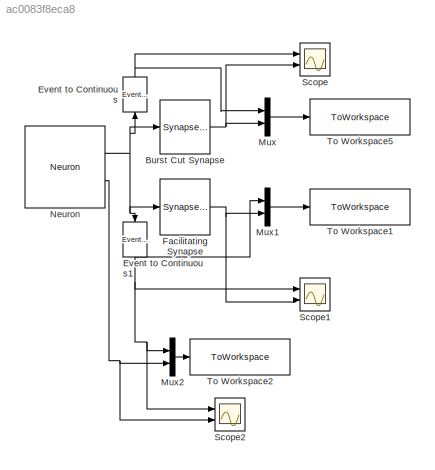
MODEL slx_ac0083f8eca8
KIND model
CONFIG AbsTol = auto
CONFIG EnableMultiTasking = off
CONFIG FixedStep = auto
CONFIG MaxStep = auto
CONFIG MinStep = auto
CONFIG RelTol = 1e-3
CONFIG SampleTimeConstraint = Unconstrained
CONFIG SolverName = VariableStepAuto
CONFIG StartTime = 0.0
CONFIG StopTime = 10.0
BLOCK [Reference] Burst Cut Synapse  REF=neuromorphic_blocks/Neural Blocks/Synapse with Depression  (lib defined in slx_48105648e755)
  Ports = [1, 1]
  SourceBlock = neuromorphic_blocks/Neural Blocks/Synapse with Depression
  SourceProductName = Neuromorphic Toolbox
  SourceType = Synapse with Depression
BLOCK [Reference] Event to Continuous  REF=neuromorphic_blocks/Events Transmission Blocks/Event to Continuous  (lib defined in slx_48105648e755)
  NameLocation = right
  Ports = [1, 1]
  SourceBlock = neuromorphic_blocks/Events Transmission Blocks/Event to Continuous
  SourceProductName = Neuromorphic Toolbox
  SourceType = Event to Continuous
BLOCK [Reference] Event to Continuous1  REF=neuromorphic_blocks/Events Transmission Blocks/Event to Continuous  (lib defined in slx_48105648e755)
  NameLocation = left
  Ports = [1, 1]
  SourceBlock = neuromorphic_blocks/Events Transmission Blocks/Event to Continuous
  SourceProductName = Neuromorphic Toolbox
  SourceType = Event to Continuous
BLOCK [Reference] Facilitating Synapse  REF=neuromorphic_blocks/Neural Blocks/Synapse with Facilitation  (lib defined in slx_48105648e755)
  Ports = [1, 1]
  SourceBlock = neuromorphic_blocks/Neural Blocks/Synapse with Facilitation
  SourceProductName = Neuromorphic Toolbox
  SourceType = Synapse with Facilitation
BLOCK [Mux] Mux
  DisplayOption = bar
  Inputs = 2
  Ports = [2, 1]
BLOCK [Mux] Mux1
  DisplayOption = bar
  Inputs = 2
  Ports = [2, 1]
BLOCK [Mux] Mux2
  DisplayOption = bar
  Inputs = 2
  Ports = [2, 1]
BLOCK [Reference] Neuron  REF=neuromorphic_blocks/Neural Blocks/Neuron  (lib defined in slx_48105648e755)
  Ports = [1, 2]
  SourceBlock = neuromorphic_blocks/Neural Blocks/Neuron
  SourceProductName = Neuromorphic Toolbox
  SourceType = Neuron
BLOCK [Scope] Scope
  Floating = off
  NumInputPorts = 2
  Ports = [2]
  ScopeSpecificationString = Simulink.scopes.TimeScopeBlockCfg('CurrentConfiguration', extmgr.ConfigurationSet(extmgr.Configuration('Core','General UI',true),extmgr.Configuration('Core','Source UI',true),extmgr.Configuration('Sources','WiredSimulink',true),extmgr.Configuration('Visuals','Time Domain',true,'SerializedDisplays',{struct('MinYLimReal','-0.25','MaxYLimReal','2.25','YLabelReal','','MinYLimMag','0.00000','MaxYLimMag...<+1468ch>
BLOCK [Scope] Scope1
  Floating = off
  NumInputPorts = 2
  Ports = [2]
  ScopeSpecificationString = Simulink.scopes.TimeScopeBlockCfg('CurrentConfiguration', extmgr.ConfigurationSet(extmgr.Configuration('Core','General UI',true),extmgr.Configuration('Core','Source UI',true),extmgr.Configuration('Sources','WiredSimulink',true,'DataLoggingVariableName','ScopeData1'),extmgr.Configuration('Visuals','Time Domain',true,'SerializedDisplays',{struct('MinYLimReal','-0.24999','MaxYLimReal','2.24994','YLab...<+1421ch>
BLOCK [Scope] Scope2
  Floating = off
  NumInputPorts = 2
  Ports = [2]
  ScopeSpecificationString = Simulink.scopes.TimeScopeBlockCfg('CurrentConfiguration', extmgr.ConfigurationSet(extmgr.Configuration('Core','General UI',true),extmgr.Configuration('Core','Source UI',true),extmgr.Configuration('Sources','WiredSimulink',true,'DataLoggingVariableName','ScopeData1'),extmgr.Configuration('Visuals','Time Domain',true,'SerializedDisplays',{struct('MinYLimReal','-4.63401','MaxYLimReal','5.67611','YLab...<+1460ch>
BLOCK [ToWorkspace] To Workspace1
  FixptAsFi = on
  MaxDataPoints = inf
  NameLocation = top
  Ports = [1]
  SampleTime = -1
  SaveFormat = Structure With Time
  VariableName = facilitating
BLOCK [ToWorkspace] To Workspace2
  FixptAsFi = on
  MaxDataPoints = inf
  NameLocation = top
  Ports = [1]
  SampleTime = -1
  SaveFormat = Structure With Time
  VariableName = neuron
BLOCK [ToWorkspace] To Workspace5
  FixptAsFi = on
  MaxDataPoints = inf
  NameLocation = top
  Ports = [1]
  SampleTime = -1
  SaveFormat = Structure With Time
  VariableName = depressing
NET Burst Cut Synapse:1 -> Mux:2, Scope:2
NET Event to Continuous1:1 -> Mux1:1, Mux2:1, Scope1:1, Scope2:1
NET Event to Continuous:1 -> Mux:1, Scope:1
NET Facilitating Synapse:1 -> Mux1:2, Scope1:2
LINE Mux1:1 -> To Workspace1:1
LINE Mux2:1 -> To Workspace2:1
LINE Mux:1 -> To Workspace5:1
NET Neuron:1 -> Burst Cut Synapse:1, Event to Continuous1:1, Event to Continuous:1, Facilitating Synapse:1
NET Neuron:2 -> Mux2:2, Scope2:2
note: NET lines group one-source signal fan-out (src -> all destinations, sorted); 1:1 wires keep LINE
